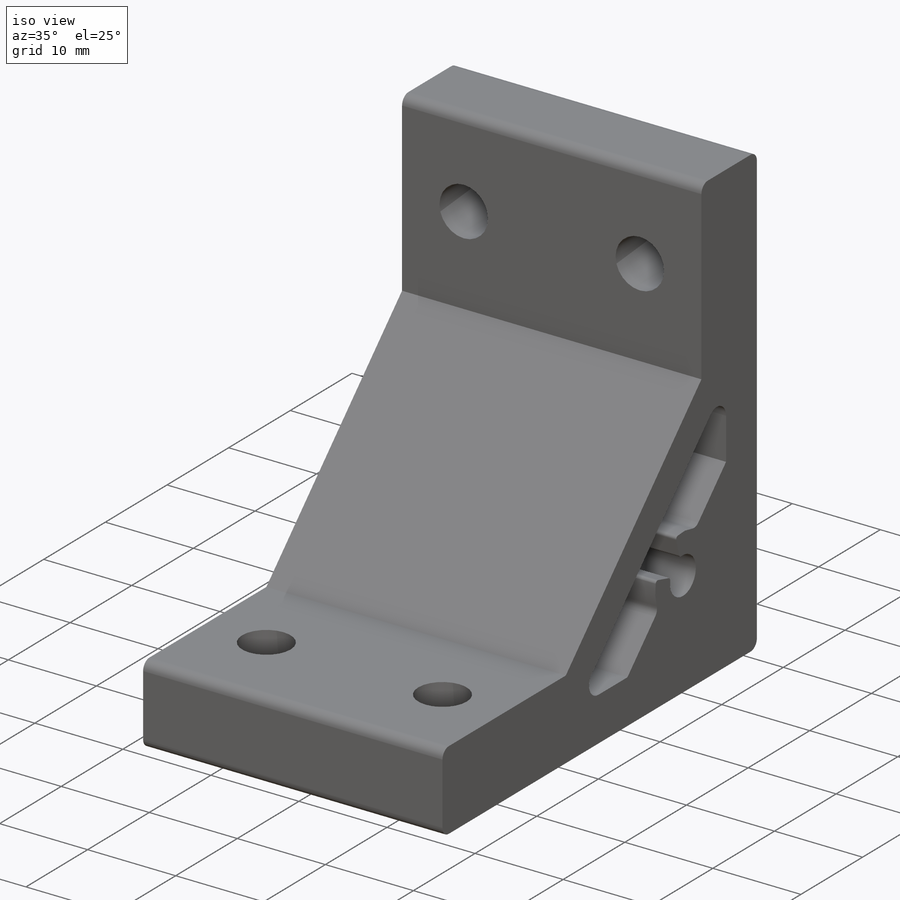
[diagram: iso view]
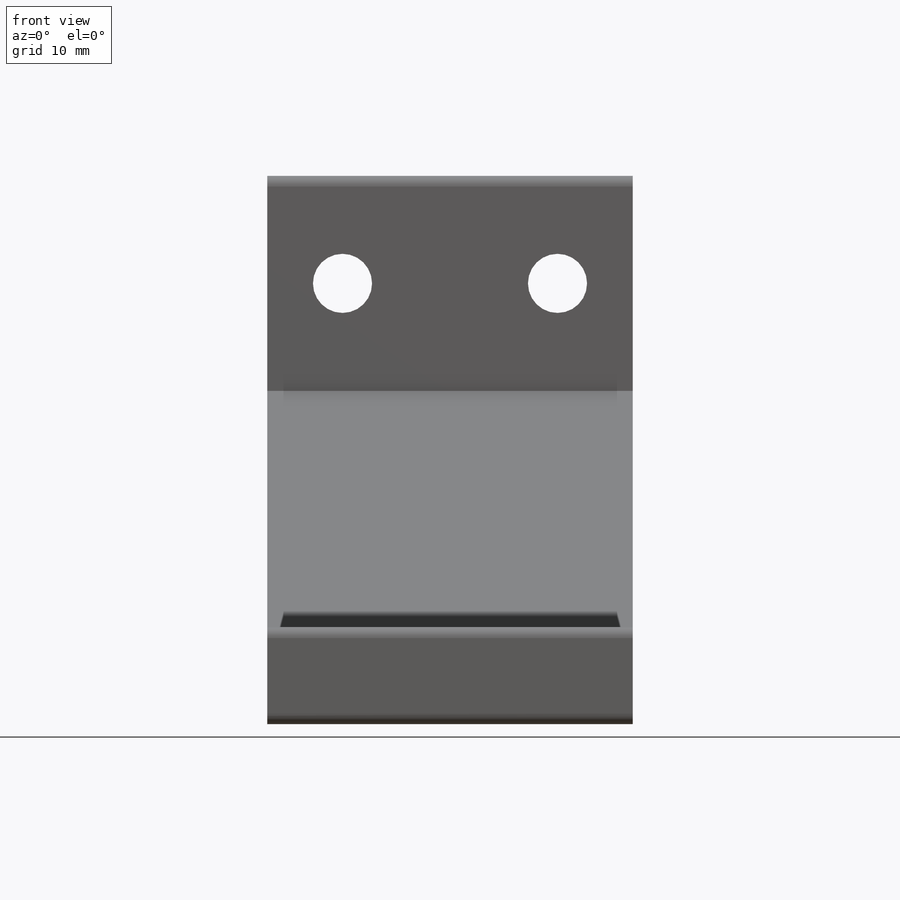
[diagram: front view]
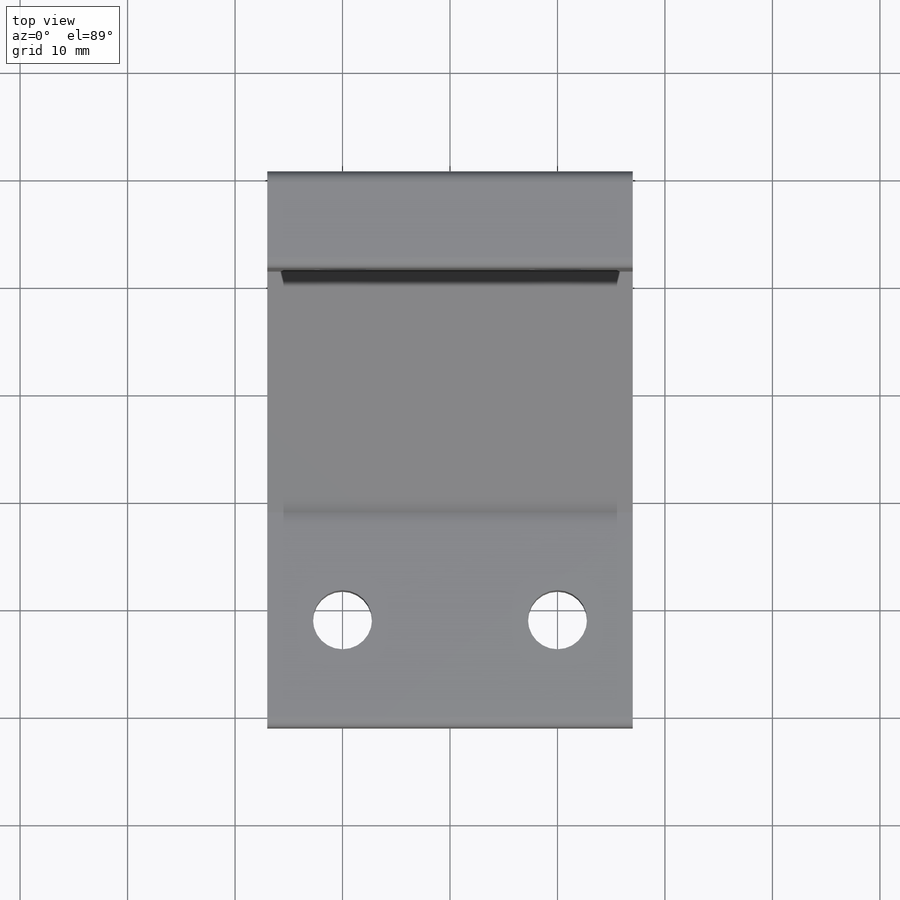
[diagram: top view]
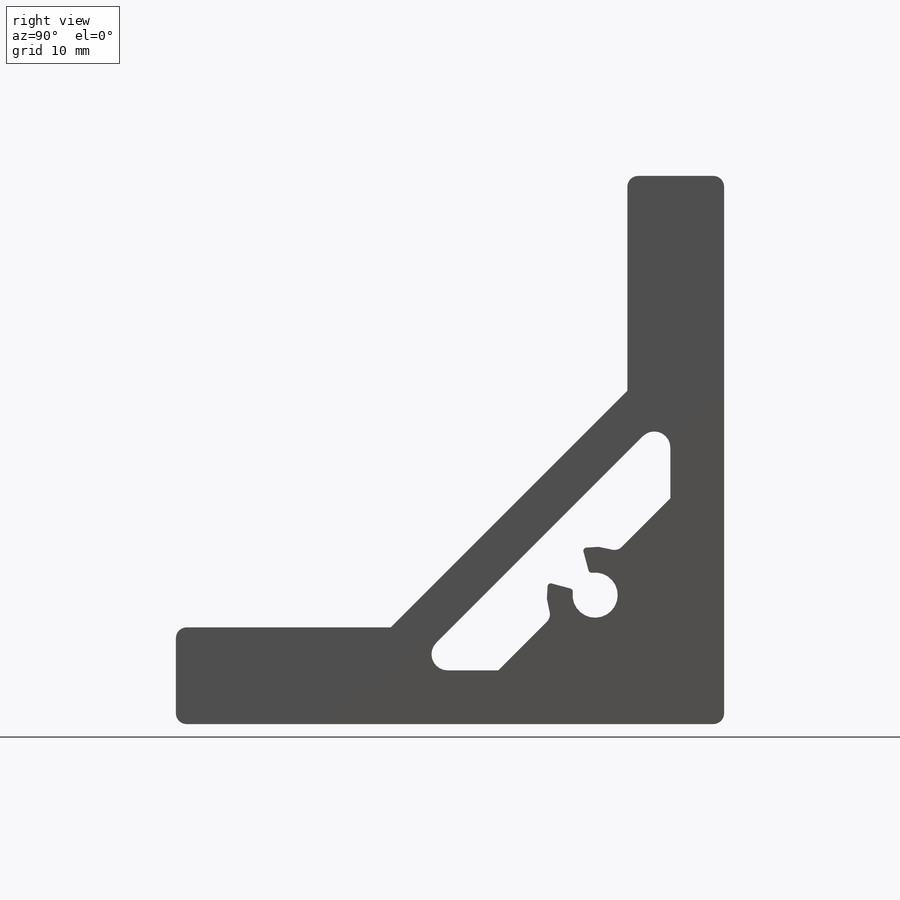
[diagram: right view]
SOLIDWORKS PART (.sldprt)
format: sldprt  version: not decoded by parser v0  size: 212,992 bytes
history: native  units: mm
features: plane x5, sketch x5, cut_extrude x4, material x1, extrude x1 (+16 scaffold rows collapsed)
feature tree (32):
  scaffold x16  (default folders/planes/origin — collapsed)
  material  "Material <not specified>"
  plane  "Plane1"
  sketch  "Sketch1"  dims[c1.D7=2.1mm c1.D13=4.5mm c1.D14=1.0mm c1.D1=9.0mm c1.D2=9.0mm c1.D3=51.0mm c1.D4=51.0mm c1.D5=5.0mm c1.D6=5.0mm c1.D8=~39.192771mm c2.D8=45.0deg c2.D9=19.0mm c2.D10=19.0mm c3.D9=20.0mm c3.D10=20.0mm c3.D8=12.0mm c3.D11=4.0mm c3.D12=5.9mm]
  extrude  "Boss-Extrude1"  Depth=17mm
  plane  "Plane2"
  sketch  "Sketch2"
  cut_extrude  "Cut-Extrude1"  Depth=9mm
  plane  "Plane3"
  sketch  "Sketch3"
  cut_extrude  "Cut-Extrude2"  Depth=9mm
  plane  "Plane4"
  sketch  "Sketch4"
  cut_extrude  "Cut-Extrude3"  Depth=9mm
  plane  "Plane5"
  sketch  "Sketch5"
  cut_extrude  "Cut-Extrude4"  Depth=9mm
decode coverage: 6 of 10 modeling features carry decoded parameters
note: ~ marks probable driven/reference dimensions
note: suppression state not decoded; provenance and decode notes live in map.json
